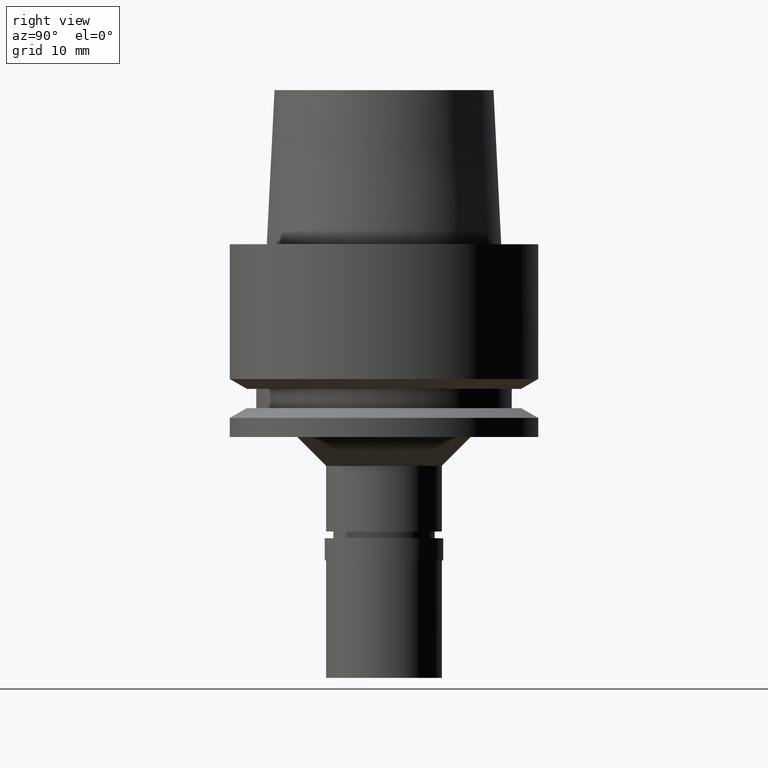
[diagram: clean part render]
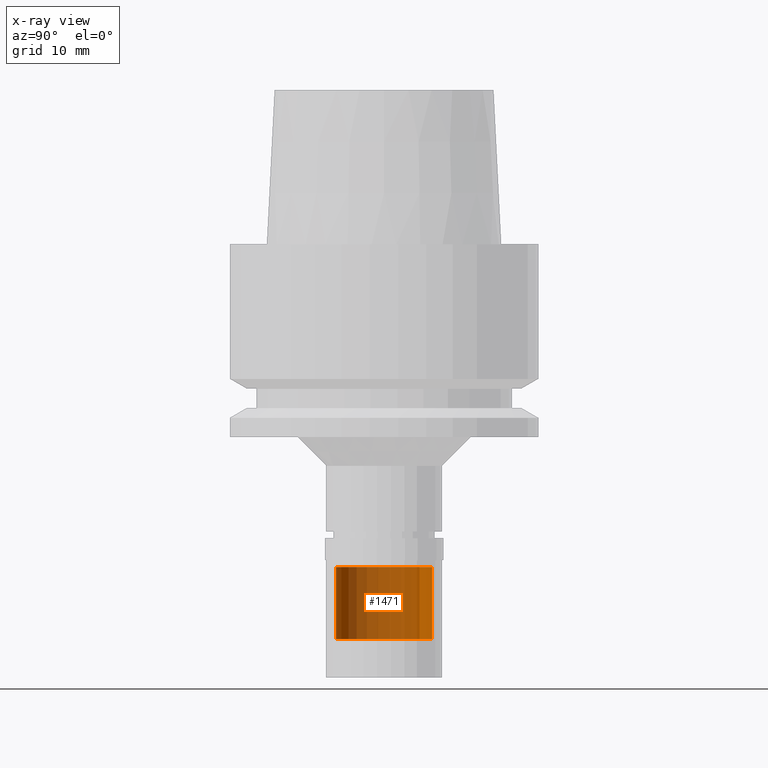
[diagram: x-ray — body ghosted, one internal face saturated and labeled with its STEP entity id]
A machine part, right view, then the same camera in x-ray: the body is ghosted and one INTERNAL B-rep face — a face not visible from any outside direction — is saturated and labeled: STEP entity #1471.
In plain terms, the highlighted cylindrical surface (partial cylindrical patch) has radius 5 mm, axis along (0, 0, 1).
Its self-contained STEP definition (entity closure, byte-faithful):
#45 = CARTESIAN_POINT ( 'NONE',  ( 0.0000000000000000000, -5.000000000000000000, -33.50000000000000000 ) ) ;
#84 = ORIENTED_EDGE ( 'NONE', *, *, #1394, .F. ) ;
#215 = VERTEX_POINT ( 'NONE', #1700 ) ;
#284 = DIRECTION ( 'NONE',  ( 0.0000000000000000000, 0.0000000000000000000, 1.000000000000000000 ) ) ;
#296 = CIRCLE ( 'NONE', #2088, 5.000000000000000000 ) ;
#304 = DIRECTION ( 'NONE',  ( 0.0000000000000000000, 1.000000000000000000, 0.0000000000000000000 ) ) ;
#315 = CYLINDRICAL_SURFACE ( 'NONE', #782, 5.000000000000000000 ) ;
#339 = DIRECTION ( 'NONE',  ( 0.0000000000000000000, 0.0000000000000000000, 1.000000000000000000 ) ) ;
#520 = FACE_OUTER_BOUND ( 'NONE', #1422, .T. ) ;
#558 = AXIS2_PLACEMENT_3D ( 'NONE', #2216, #339, #304 ) ;
#612 = CARTESIAN_POINT ( 'NONE',  ( 0.0000000000000000000, 0.0000000000000000000, -33.50000000000000000 ) ) ;
#712 = DIRECTION ( 'NONE',  ( 0.0000000000000000000, 0.0000000000000000000, -1.000000000000000000 ) ) ;
#782 = AXIS2_PLACEMENT_3D ( 'NONE', #1153, #284, #2592 ) ;
#984 = VERTEX_POINT ( 'NONE', #45 ) ;
#1153 = CARTESIAN_POINT ( 'NONE',  ( 0.0000000000000000000, 0.0000000000000000000, -43.85000000000000142 ) ) ;
#1394 = EDGE_CURVE ( 'NONE', #984, #215, #1551, .T. ) ;
#1422 = EDGE_LOOP ( 'NONE', ( #2147, #84, #1891, #2520 ) ) ;
#1456 = EDGE_CURVE ( 'NONE', #2569, #1816, #1564, .T. ) ;
#1471 = ADVANCED_FACE ( 'NONE', ( #520 ), #315, .T. ) ;
#1551 = LINE ( 'NONE', #2193, #1557 ) ;
#1557 = VECTOR ( 'NONE', #712, 1000.000000000000000 ) ;
#1564 = LINE ( 'NONE', #2405, #2395 ) ;
#1689 = EDGE_CURVE ( 'NONE', #1816, #215, #2461, .T. ) ;
#1700 = CARTESIAN_POINT ( 'NONE',  ( 0.0000000000000000000, -5.000000000000000000, -41.00000000000000000 ) ) ;
#1816 = VERTEX_POINT ( 'NONE', #2457 ) ;
#1891 = ORIENTED_EDGE ( 'NONE', *, *, #1917, .T. ) ;
#1917 = EDGE_CURVE ( 'NONE', #984, #2569, #296, .T. ) ;
#2076 = DIRECTION ( 'NONE',  ( 0.0000000000000000000, -1.000000000000000000, 0.0000000000000000000 ) ) ;
#2088 = AXIS2_PLACEMENT_3D ( 'NONE', #612, #2279, #2076 ) ;
#2138 = CARTESIAN_POINT ( 'NONE',  ( 0.0000000000000000000, 5.000000000000000000, -33.50000000000000000 ) ) ;
#2147 = ORIENTED_EDGE ( 'NONE', *, *, #1689, .T. ) ;
#2193 = CARTESIAN_POINT ( 'NONE',  ( 0.0000000000000000000, -5.000000000000000000, -33.50000000000000000 ) ) ;
#2216 = CARTESIAN_POINT ( 'NONE',  ( 0.0000000000000000000, 0.0000000000000000000, -41.00000000000000000 ) ) ;
#2279 = DIRECTION ( 'NONE',  ( 0.0000000000000000000, 0.0000000000000000000, -1.000000000000000000 ) ) ;
#2395 = VECTOR ( 'NONE', #2621, 1000.000000000000000 ) ;
#2405 = CARTESIAN_POINT ( 'NONE',  ( 0.0000000000000000000, 5.000000000000000000, -33.50000000000000000 ) ) ;
#2457 = CARTESIAN_POINT ( 'NONE',  ( 0.0000000000000000000, 5.000000000000000000, -41.00000000000000000 ) ) ;
#2461 = CIRCLE ( 'NONE', #558, 5.000000000000000000 ) ;
#2520 = ORIENTED_EDGE ( 'NONE', *, *, #1456, .T. ) ;
#2569 = VERTEX_POINT ( 'NONE', #2138 ) ;
#2592 = DIRECTION ( 'NONE',  ( 0.0000000000000000000, 1.000000000000000000, 0.0000000000000000000 ) ) ;
#2621 = DIRECTION ( 'NONE',  ( 0.0000000000000000000, 0.0000000000000000000, -1.000000000000000000 ) ) ;